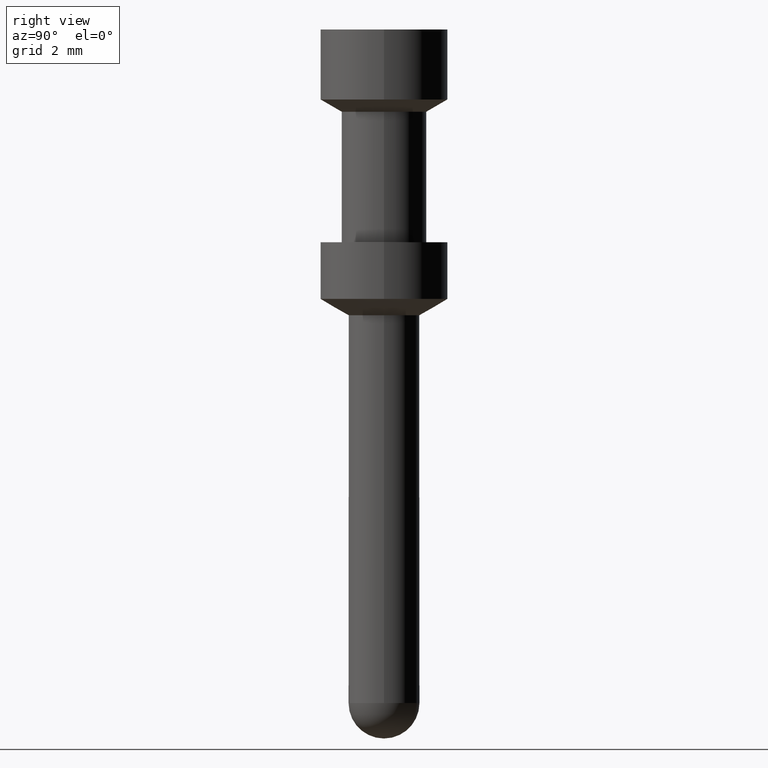
[diagram: clean part render]
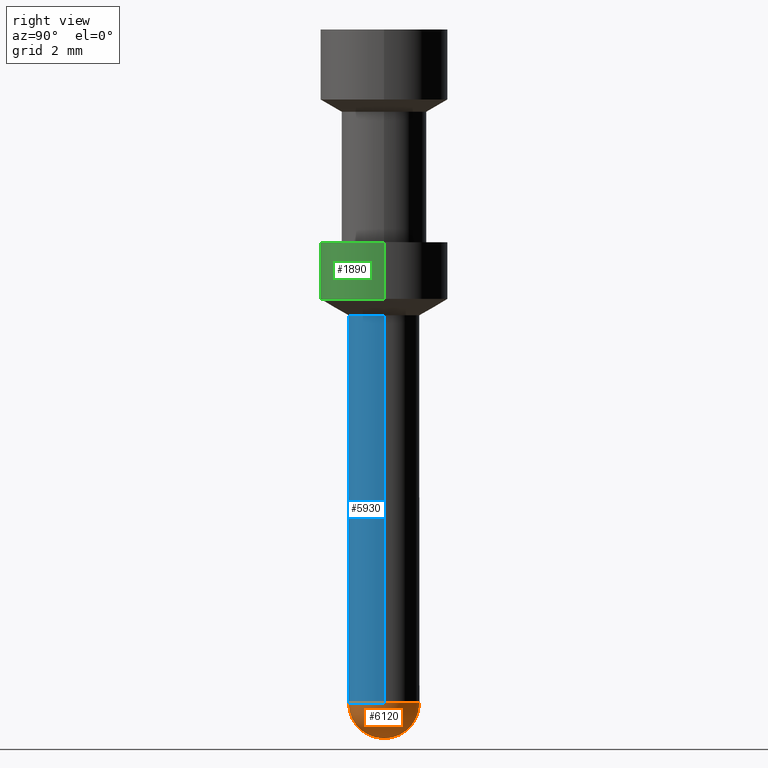
[diagram: same view with three faces highlighted in distinct colors, each labeled with its STEP entity id]
A machine part, right view with three faces highlighted in distinct colors.
Their STEP definitions:

[orange] entity #6120 — the highlighted spherical surface has radius 1.25 mm.
#590=CARTESIAN_POINT('',(33.587952,88.407183,-6.59999999999999));
#600=DIRECTION('',(0.,-1.,0.));
#610=DIRECTION('',(-1.,0.,0.));
#620=AXIS2_PLACEMENT_3D('',#590,#600,#610);
#630=CIRCLE('',#620,1.25);
#640=CARTESIAN_POINT('',(33.587952,88.407183,-5.34999999999999));
#650=VERTEX_POINT('',#640);
#680=CARTESIAN_POINT('',(34.837952,88.407183,-6.59999999999999));
#690=VERTEX_POINT('',#680);
#700=EDGE_CURVE('',#690,#650,#630,.T.);
#1420=CARTESIAN_POINT('',(33.587952,88.407183,-7.84999999999999));
#1430=VERTEX_POINT('',#1420);
#1460=CARTESIAN_POINT('',(33.587952,88.407183,-6.59999999999999));
#1470=DIRECTION('',(1.,0.,0.));
#1480=DIRECTION('',(0.,-1.,0.));
#1490=AXIS2_PLACEMENT_3D('',#1460,#1470,#1480);
#1500=CIRCLE('',#1490,1.25);
#1510=CARTESIAN_POINT('',(33.587952,89.657183,-6.59999999999999));
#1520=VERTEX_POINT('',#1510);
#1530=EDGE_CURVE('',#1430,#1520,#1500,.T.);
#1550=EDGE_CURVE('',#1520,#650,#1500,.T.);
#5870=EDGE_CURVE('',#1430,#690,#630,.T.);
#6010=CARTESIAN_POINT('',(33.587952,88.407183,-6.59999999999999));
#6020=DIRECTION('',(0.,1.,0.));
#6030=DIRECTION('',(0.,0.,1.));
#6040=AXIS2_PLACEMENT_3D('',#6010,#6020,#6030);
#6050=SPHERICAL_SURFACE('',#6040,1.25);
#6060=ORIENTED_EDGE('',*,*,#5870,.F.);
#6070=ORIENTED_EDGE('',*,*,#700,.F.);
#6080=ORIENTED_EDGE('',*,*,#1550,.T.);
#6090=ORIENTED_EDGE('',*,*,#1530,.T.);
#6100=EDGE_LOOP('',(#6090,#6080,#6070,#6060));
#6110=FACE_OUTER_BOUND('',#6100,.T.);
#6120=ADVANCED_FACE('',(#6110),#6050,.T.);

[blue] entity #5930 — the highlighted cylindrical surface (edge-blend (fillet) strip) has radius 1.25 mm, axis along (0, 0, 1).
#490=CARTESIAN_POINT('',(32.337952,81.7230824532382,-6.59999999999999));
#500=DIRECTION('',(0.,-1.,0.));
#510=VECTOR('',#500,1.);
#520=LINE('',#490,#510);
#530=CARTESIAN_POINT('',(32.337952,88.407183,-6.59999999999999));
#540=VERTEX_POINT('',#530);
#550=CARTESIAN_POINT('',(32.337952,74.7345332691897,-6.59999999999999));
#560=VERTEX_POINT('',#550);
#570=EDGE_CURVE('',#540,#560,#520,.T.);
#590=CARTESIAN_POINT('',(33.587952,88.407183,-6.59999999999999));
#600=DIRECTION('',(0.,-1.,0.));
#610=DIRECTION('',(-1.,0.,0.));
#620=AXIS2_PLACEMENT_3D('',#590,#600,#610);
#630=CIRCLE('',#620,1.25);
#680=CARTESIAN_POINT('',(34.837952,88.407183,-6.59999999999999));
#690=VERTEX_POINT('',#680);
#720=CARTESIAN_POINT('',(34.837952,81.7230824532382,-6.59999999999999));
#730=DIRECTION('',(0.,-1.,0.));
#740=VECTOR('',#730,1.);
#750=LINE('',#720,#740);
#760=CARTESIAN_POINT('',(34.837952,74.7345332691897,-6.59999999999999));
#770=VERTEX_POINT('',#760);
#780=EDGE_CURVE('',#690,#770,#750,.T.);
#800=CARTESIAN_POINT('',(33.587952,74.7345332691897,-6.59999999999999));
#810=DIRECTION('',(0.,-1.,0.));
#820=DIRECTION('',(-1.,0.,0.));
#830=AXIS2_PLACEMENT_3D('',#800,#810,#820);
#840=CIRCLE('',#830,1.25);
#1100=EDGE_CURVE('',#560,#770,#840,.T.);
#1420=CARTESIAN_POINT('',(33.587952,88.407183,-7.84999999999999));
#1430=VERTEX_POINT('',#1420);
#1440=EDGE_CURVE('',#540,#1430,#630,.T.);
#5800=CARTESIAN_POINT('',(33.587952,81.7230824532382,-6.59999999999999))
;
#5810=DIRECTION('',(0.,-1.,0.));
#5820=DIRECTION('',(-1.,0.,0.));
#5830=AXIS2_PLACEMENT_3D('',#5800,#5810,#5820);
#5840=CYLINDRICAL_SURFACE('',#5830,1.25);
#5850=ORIENTED_EDGE('',*,*,#1100,.F.);
#5860=ORIENTED_EDGE('',*,*,#780,.T.);
#5870=EDGE_CURVE('',#1430,#690,#630,.T.);
#5880=ORIENTED_EDGE('',*,*,#5870,.T.);
#5890=ORIENTED_EDGE('',*,*,#1440,.T.);
#5900=ORIENTED_EDGE('',*,*,#570,.F.);
#5910=EDGE_LOOP('',(#5900,#5890,#5880,#5860,#5850));
#5920=FACE_OUTER_BOUND('',#5910,.T.);
#5930=ADVANCED_FACE('',(#5920),#5840,.T.);

[green] entity #1890 — the highlighted cylindrical surface (partial cylindrical patch) has radius 2.25 mm, axis along (0, -0, 1).
#210=CARTESIAN_POINT('',(33.587952,72.157183,-6.59999999999999));
#220=DIRECTION('',(0.,-1.,-1.83697019872103E-16));
#230=DIRECTION('',(1.,0.,0.));
#240=AXIS2_PLACEMENT_3D('',#210,#220,#230);
#250=CIRCLE('',#240,2.25);
#260=CARTESIAN_POINT('',(35.837952,72.157183,-6.59999999999999));
#270=VERTEX_POINT('',#260);
#280=CARTESIAN_POINT('',(31.337952,72.157183,-6.59999999999999));
#290=VERTEX_POINT('',#280);
#320=EDGE_CURVE('',#290,#270,#250,.T.);
#1060=CARTESIAN_POINT('',(35.837952,74.157183,-6.59999999999999));
#1070=VERTEX_POINT('',#1060);
#1160=CARTESIAN_POINT('',(31.337952,74.157183,-6.59999999999999));
#1170=VERTEX_POINT('',#1160);
#1200=CARTESIAN_POINT('',(33.587952,74.157183,-6.59999999999999));
#1210=DIRECTION('',(0.,-1.,0.));
#1220=DIRECTION('',(-1.,0.,0.));
#1230=AXIS2_PLACEMENT_3D('',#1200,#1210,#1220);
#1240=CIRCLE('',#1230,2.25);
#1250=EDGE_CURVE('',#1170,#1070,#1240,.T.);
#1680=CARTESIAN_POINT('',(33.587952,72.157183,-6.59999999999999));
#1690=DIRECTION('',(0.,-1.,-1.83697019872103E-16));
#1700=DIRECTION('',(1.,0.,0.));
#1710=AXIS2_PLACEMENT_3D('',#1680,#1690,#1700);
#1720=CYLINDRICAL_SURFACE('',#1710,2.25);
#1730=CARTESIAN_POINT('',(35.837952,72.157183,-6.59999999999999));
#1740=DIRECTION('',(0.,-1.,-1.83697019872103E-16));
#1750=VECTOR('',#1740,1.);
#1760=LINE('',#1730,#1750);
#1770=EDGE_CURVE('',#1070,#270,#1760,.T.);
#1780=ORIENTED_EDGE('',*,*,#1770,.T.);
#1790=ORIENTED_EDGE('',*,*,#1250,.T.);
#1800=CARTESIAN_POINT('',(31.337952,72.157183,-6.59999999999999));
#1810=DIRECTION('',(0.,-1.,-1.83697019872103E-16));
#1820=VECTOR('',#1810,1.);
#1830=LINE('',#1800,#1820);
#1840=EDGE_CURVE('',#1170,#290,#1830,.T.);
#1850=ORIENTED_EDGE('',*,*,#1840,.F.);
#1860=ORIENTED_EDGE('',*,*,#320,.F.);
#1870=EDGE_LOOP('',(#1860,#1850,#1790,#1780));
#1880=FACE_OUTER_BOUND('',#1870,.T.);
#1890=ADVANCED_FACE('',(#1880),#1720,.T.);